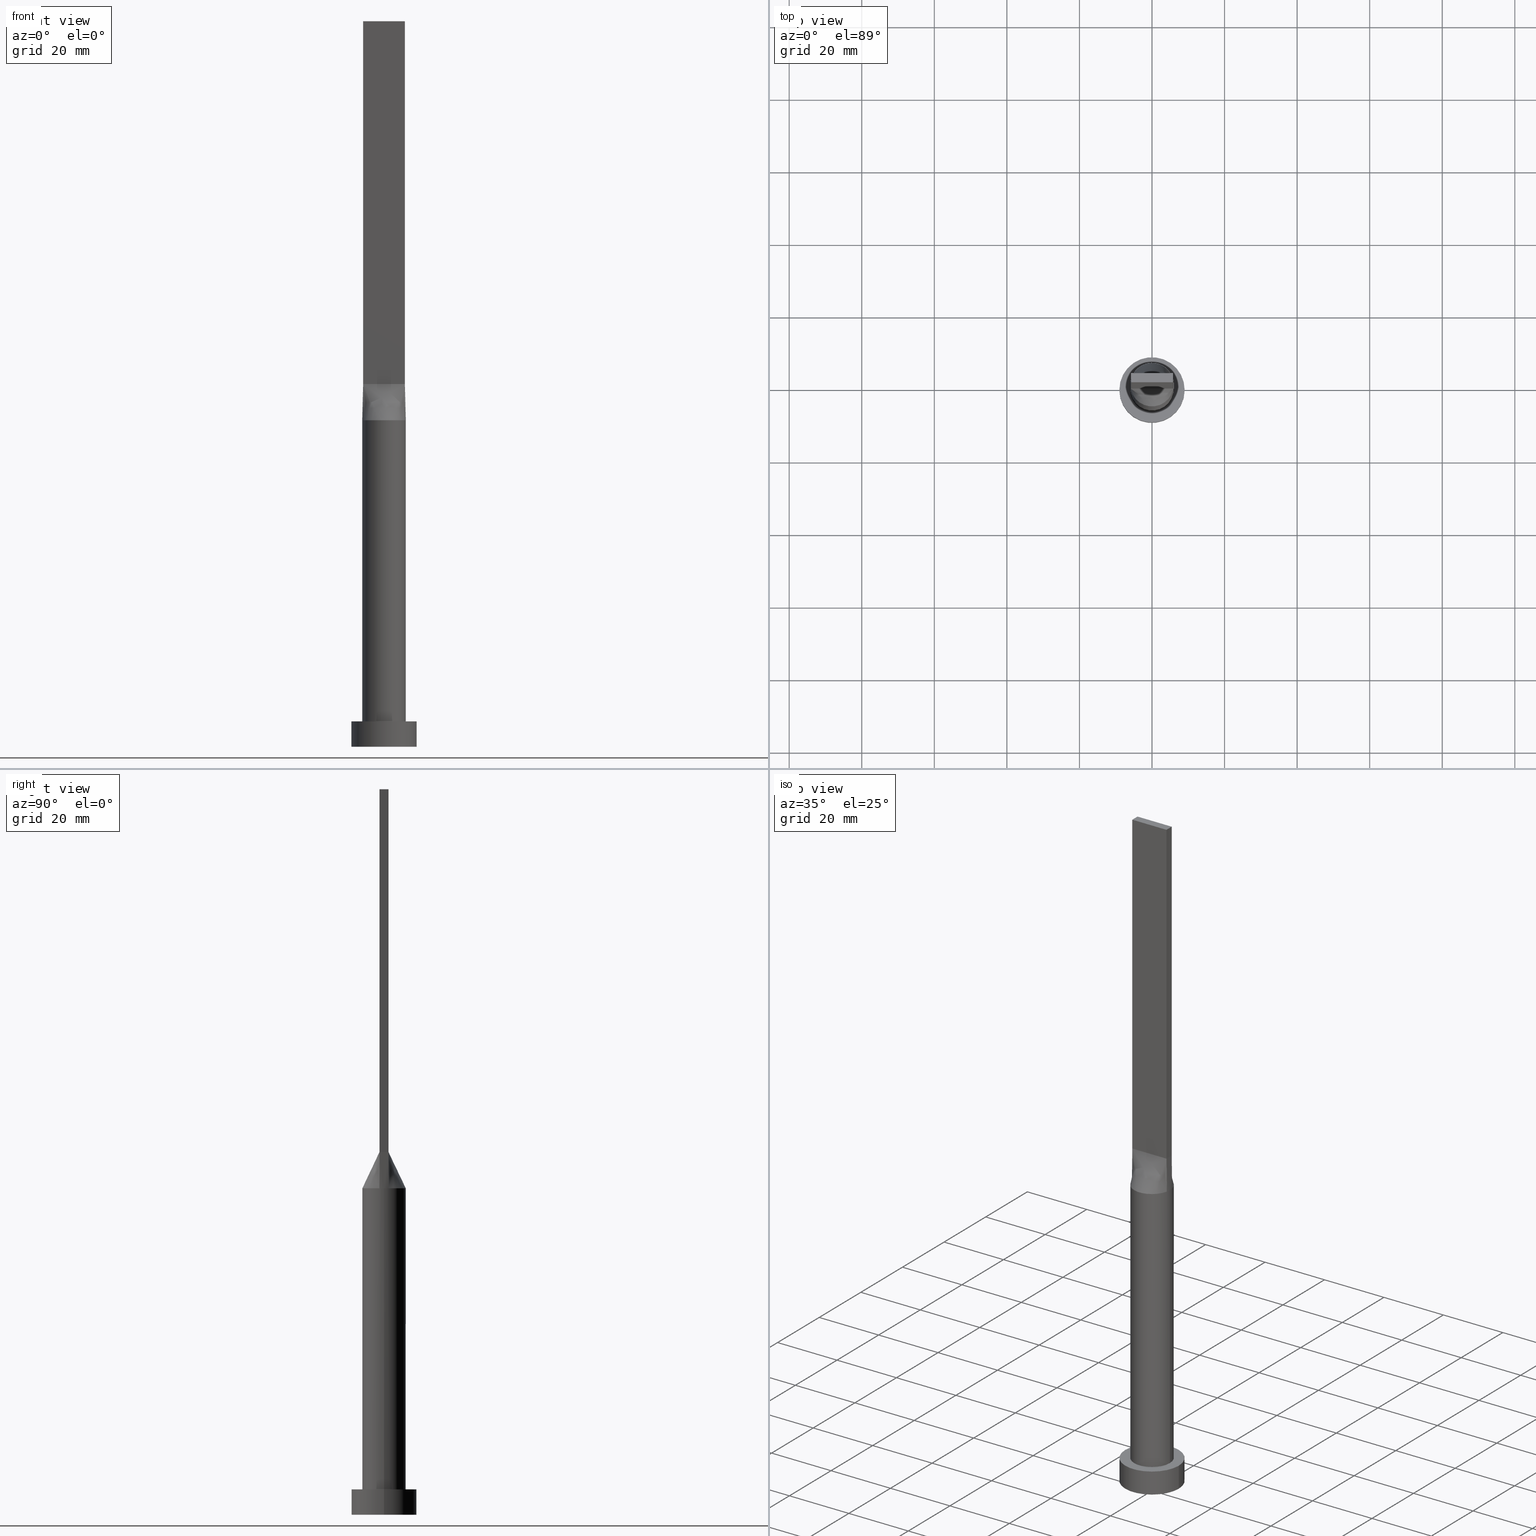
[diagram: canonical four-view strip — front | top / right | iso, engineering-drawing reading convention]
A machine part, canonical four-view strip (front | top / right | iso — engineering-drawing reading convention). The complete STEP part file that produces these views, byte-faithful:
ISO-10303-21;
HEADER;
FILE_DESCRIPTION (( 'STEP AP203' ),
    '1' );
FILE_NAME ('54c3.STEP',
    '2023-02-13T08:33:43',
    ( '' ),
    ( '' ),
    'SwSTEP 2.0',
    'SolidWorks 2019',
    '' );
FILE_SCHEMA (( 'CONFIG_CONTROL_DESIGN' ));
ENDSEC;

DATA;
#1 = EDGE_LOOP ( 'NONE', ( #168, #536, #238, #15 ) ) ;
#2 = CARTESIAN_POINT ( 'NONE',  ( -0.8058840496048931268, 5.959001506938069070, 90.00000000000001421 ) ) ;
#3 = DIRECTION ( 'NONE',  ( 1.000000000000000000, 0.000000000000000000, 0.000000000000000000 ) ) ;
#4 = ORIENTED_EDGE ( 'NONE', *, *, #496, .T. ) ;
#5 = EDGE_CURVE ( 'NONE', #99, #77, #498, .T. ) ;
#6 = CARTESIAN_POINT ( 'NONE',  ( -5.759267569818392829, 1.752014689090956256, 90.00000000000002842 ) ) ;
#7 = DIRECTION ( 'NONE',  ( 1.000000000000000000, 0.000000000000000000, 0.000000000000000000 ) ) ;
#8 = APPROVAL_ROLE ( '' ) ;
#9 = CARTESIAN_POINT ( 'NONE',  ( 5.863058183536806744, -1.274577865986263436, 90.00000000000001421 ) ) ;
#10 = DIRECTION ( 'NONE',  ( 1.000000000000000000, 0.000000000000000000, 0.000000000000000000 ) ) ;
#11 = DIRECTION ( 'NONE',  ( 1.000000000000000000, 0.000000000000000000, 0.000000000000000000 ) ) ;
#12 = CIRCLE ( 'NONE', #380, 6.000000000000000888 ) ;
#13 = DIRECTION ( 'NONE',  ( -0.000000000000000000, -0.000000000000000000, -1.000000000000000000 ) ) ;
#15 = ORIENTED_EDGE ( 'NONE', *, *, #70, .T. ) ;
#14 = APPROVAL_DATE_TIME ( #430, #350 ) ;
#16 = APPROVAL_STATUS ( 'not_yet_approved' ) ;
#17 = CARTESIAN_POINT ( 'NONE',  ( 2.395833333333337478, -1.249999999999999778, 100.0000000000000142 ) ) ;
#18 = DIRECTION ( 'NONE',  ( 0.000000000000000000, -1.000000000000000000, 0.000000000000000000 ) ) ;
#19 = B_SPLINE_SURFACE_WITH_KNOTS ( 'NONE', 3, 1, ( 
 ( #9, #198 ),
 ( #574, #526 ),
 ( #109, #294 ),
 ( #433, #163 ),
 ( #477, #116 ),
 ( #436, #212 ) ),
 .UNSPECIFIED., .F., .F., .F.,
 ( 4, 2, 4 ),
 ( 2, 2 ),
 ( 0.000000000000000000, 0.5000000000000000000, 1.000000000000000000 ),
 ( 0.000000000000000000, 1.000000000000000000 ),
 .UNSPECIFIED. ) ;
#20 = PERSON_AND_ORGANIZATION ( #488, #538 ) ;
#21 = CYLINDRICAL_SURFACE ( 'NONE', #396, 9.000000000000000000 ) ;
#22 = EDGE_CURVE ( 'NONE', #470, #445, #274, .T. ) ;
#23 = VERTEX_POINT ( 'NONE', #549 ) ;
#24 = PERSON_AND_ORGANIZATION_ROLE ( 'creator' ) ;
#25 = AXIS2_PLACEMENT_3D ( 'NONE', #36, #312, #3 ) ;
#26 = CARTESIAN_POINT ( 'NONE',  ( 3.833333333333329929, 1.250000000000000222, 100.0000000000000000 ) ) ;
#27 = ADVANCED_FACE ( 'NONE', ( #560 ), #100, .T. ) ;
#28 = ORIENTED_EDGE ( 'NONE', *, *, #358, .T. ) ;
#29 = CARTESIAN_POINT ( 'NONE',  ( 4.659826596530313836, 3.842755878357678068, 90.00000000000002842 ) ) ;
#30 = ORIENTED_EDGE ( 'NONE', *, *, #247, .F. ) ;
#31 = B_SPLINE_CURVE_WITH_KNOTS ( 'NONE', 3,
 ( #96, #152, #329, #276, #462, #148, #106, #236, #226, #410, #420, #565, #2, #324, #359, #187, #190, #57, #367, #372, #6, #512 ),
 .UNSPECIFIED., .F., .F.,
 ( 4, 2, 2, 2, 2, 2, 2, 2, 2, 2, 4 ),
 ( 0.000000000000000000, 0.1249999999999999722, 0.2499999999999999445, 0.3749999999999999445, 0.4374999999999999445, 0.4999999999999998890, 0.5624999999999998890, 0.6249999999999998890, 0.7499999999999997780, 0.8749999999999998890, 1.000000000000000000 ),
 .UNSPECIFIED. ) ;
#32 = CARTESIAN_POINT ( 'NONE',  ( 3.354166666666662966, 1.250000000000000222, 100.0000000000000000 ) ) ;
#33 = EDGE_LOOP ( 'NONE', ( #30, #234, #313, #355, #37, #409 ) ) ;
#34 = LOCAL_TIME ( 9, 33, 43.00000000000000000, #577 ) ;
#35 = FACE_OUTER_BOUND ( 'NONE', #466, .T. ) ;
#36 = CARTESIAN_POINT ( 'NONE',  ( 0.000000000000000000, 0.000000000000000000, 90.00000000000001421 ) ) ;
#37 = ORIENTED_EDGE ( 'NONE', *, *, #388, .T. ) ;
#38 = CARTESIAN_POINT ( 'NONE',  ( -5.750000000000000000, -1.249999999999999112, 200.0000000000000000 ) ) ;
#39 = DIRECTION ( 'NONE',  ( 1.000000000000000000, -5.656706986880892860E-17, 0.000000000000000000 ) ) ;
#40 = CARTESIAN_POINT ( 'NONE',  ( -5.806529091768402928, 1.262288932993132606, 95.00000000000000000 ) ) ;
#41 = DIRECTION ( 'NONE',  ( 1.000000000000000000, 0.000000000000000000, 0.000000000000000000 ) ) ;
#42 = LINE ( 'NONE', #139, #202 ) ;
#43 = CARTESIAN_POINT ( 'NONE',  ( -1.916666666666660523, -1.249999999999999334, 100.0000000000000000 ) ) ;
#44 = ADVANCED_FACE ( 'NONE', ( #501, #90 ), #230, .T. ) ;
#45 = ORIENTED_EDGE ( 'NONE', *, *, #95, .F. ) ;
#46 = CARTESIAN_POINT ( 'NONE',  ( -5.953310891118034576, 0.8594154111126165452, 90.00000000000001421 ) ) ;
#47 = DIRECTION ( 'NONE',  ( -0.000000000000000000, -0.000000000000000000, -1.000000000000000000 ) ) ;
#48 = CARTESIAN_POINT ( 'NONE',  ( -3.833333333333330817, -1.249999999999999112, 100.0000000000000142 ) ) ;
#49 = EDGE_CURVE ( 'NONE', #442, #207, #463, .T. ) ;
#50 = CARTESIAN_POINT ( 'NONE',  ( -1.966519853258818173, 5.681792876789067748, 90.00000000000001421 ) ) ;
#51 = EDGE_LOOP ( 'NONE', ( #422, #289, #548, #270 ) ) ;
#52 = CARTESIAN_POINT ( 'NONE',  ( -5.750000000000000000, 0.8333333333333350357, 100.0000000000000000 ) ) ;
#53 = CARTESIAN_POINT ( 'NONE',  ( 0.000000000000000000, 0.000000000000000000, 90.00000000000001421 ) ) ;
#54 = DIRECTION ( 'NONE',  ( 0.000000000000000000, 0.000000000000000000, 1.000000000000000000 ) ) ;
#55 = CARTESIAN_POINT ( 'NONE',  ( -3.037647739454304663, 5.231880992812857123, 90.00000000000007105 ) ) ;
#56 = ORIENTED_EDGE ( 'NONE', *, *, #399, .F. ) ;
#57 = CARTESIAN_POINT ( 'NONE',  ( -4.659826596530312948, 3.842755878357679844, 90.00000000000001421 ) ) ;
#58 = DIRECTION ( 'NONE',  ( 0.000000000000000000, -0.000000000000000000, -1.000000000000000000 ) ) ;
#59 = CARTESIAN_POINT ( 'NONE',  ( -5.038190104264874236, 3.311355329404293446, 90.00000000000001421 ) ) ;
#60 = LINE ( 'NONE', #257, #541 ) ;
#61 = ORIENTED_EDGE ( 'NONE', *, *, #461, .T. ) ;
#62 = CALENDAR_DATE ( 2023, 13, 2 ) ;
#63 = CARTESIAN_POINT ( 'NONE',  ( -5.750000000000000000, 1.250000000000000222, 100.0000000000000000 ) ) ;
#64 = VECTOR ( 'NONE', #387, 1000.000000000000000 ) ;
#65 = CARTESIAN_POINT ( 'NONE',  ( 0.9583333333333283743, 1.250000000000000222, 100.0000000000000000 ) ) ;
#66 = DATE_TIME_ROLE ( 'classification_date' ) ;
#67 = MECHANICAL_CONTEXT ( 'NONE', #586, 'mechanical' ) ;
#68 = CARTESIAN_POINT ( 'NONE',  ( 3.833333333333336146, -1.249999999999999778, 100.0000000000000284 ) ) ;
#69 = DIRECTION ( 'NONE',  ( 1.000000000000000000, 0.000000000000000000, -0.000000000000000000 ) ) ;
#70 = EDGE_CURVE ( 'NONE', #207, #23, #493, .T. ) ;
#71 = APPLICATION_CONTEXT ( 'configuration controlled 3d designs of mechanical parts and assemblies' ) ;
#72 = EDGE_CURVE ( 'NONE', #229, #268, #593, .T. ) ;
#73 = EDGE_CURVE ( 'NONE', #559, #229, #80, .T. ) ;
#74 = CLOSED_SHELL ( 'NONE', ( #491, #447, #316, #44, #201, #174, #269, #83, #27, #82, #416, #564, #241, #553, #521 ) ) ;
#75 = AXIS2_PLACEMENT_3D ( 'NONE', #375, #94, #460 ) ;
#76 = EDGE_CURVE ( 'NONE', #79, #309, #227, .T. ) ;
#77 = VERTEX_POINT ( 'NONE', #451 ) ;
#78 = LINE ( 'NONE', #97, #482 ) ;
#79 = VERTEX_POINT ( 'NONE', #92 ) ;
#80 = LINE ( 'NONE', #272, #125 ) ;
#81 = CARTESIAN_POINT ( 'NONE',  ( 3.037647739454303331, -5.231880992812857123, 90.00000000000007105 ) ) ;
#82 = ADVANCED_FACE ( 'NONE', ( #35 ), #381, .T. ) ;
#83 = ADVANCED_FACE ( 'NONE', ( #333 ), #19, .T. ) ;
#84 = EDGE_LOOP ( 'NONE', ( #588, #573, #523, #386, #252 ) ) ;
#85 = AXIS2_PLACEMENT_3D ( 'NONE', #525, #297, #520 ) ;
#86 = LOCAL_TIME ( 9, 33, 43.00000000000000000, #394 ) ;
#87 = DIRECTION ( 'NONE',  ( -1.000000000000000000, 0.000000000000000000, 0.000000000000000000 ) ) ;
#88 = CARTESIAN_POINT ( 'NONE',  ( 5.759267569818392829, 1.752014689090955590, 90.00000000000002842 ) ) ;
#89 = DIRECTION ( 'NONE',  ( 0.000000000000000000, 0.000000000000000000, 1.000000000000000000 ) ) ;
#90 = FACE_OUTER_BOUND ( 'NONE', #186, .T. ) ;
#91 = CARTESIAN_POINT ( 'NONE',  ( 9.000000000000000000, 1.102182119232617714E-15, 0.000000000000000000 ) ) ;
#92 = CARTESIAN_POINT ( 'NONE',  ( 5.863058183536806744, 1.274577865986262326, 90.00000000000001421 ) ) ;
#93 = CARTESIAN_POINT ( 'NONE',  ( -4.659826596530313836, -3.842755878357677179, 90.00000000000002842 ) ) ;
#94 = DIRECTION ( 'NONE',  ( 0.000000000000000000, 0.000000000000000000, 1.000000000000000000 ) ) ;
#95 = EDGE_CURVE ( 'NONE', #218, #545, #12, .T. ) ;
#96 = CARTESIAN_POINT ( 'NONE',  ( 5.863058183536806744, 1.274577865986262326, 90.00000000000001421 ) ) ;
#97 = CARTESIAN_POINT ( 'NONE',  ( -9.000000000000000000, 0.000000000000000000, 7.000000000000000000 ) ) ;
#98 = CARTESIAN_POINT ( 'NONE',  ( -0.2395833333333383663, 1.250000000000000222, 100.0000000000000000 ) ) ;
#99 = VERTEX_POINT ( 'NONE', #310 ) ;
#100 = B_SPLINE_SURFACE_WITH_KNOTS ( 'NONE', 3, 1, ( 
 ( #511, #138 ),
 ( #46, #52 ),
 ( #518, #419 ),
 ( #371, #195 ),
 ( #240, #199 ),
 ( #147, #319 ) ),
 .UNSPECIFIED., .F., .F., .F.,
 ( 4, 2, 4 ),
 ( 2, 2 ),
 ( 0.000000000000000000, 0.5000000000000000000, 1.000000000000000000 ),
 ( 0.000000000000000000, 1.000000000000000000 ),
 .UNSPECIFIED. ) ;
#101 = FACE_OUTER_BOUND ( 'NONE', #51, .T. ) ;
#102 = LINE ( 'NONE', #40, #347 ) ;
#103 = VERTEX_POINT ( 'NONE', #554 ) ;
#104 = CARTESIAN_POINT ( 'NONE',  ( -5.750000000000000000, 1.250000000000000222, 100.0000000000000000 ) ) ;
#105 = ORIENTED_EDGE ( 'NONE', *, *, #443, .T. ) ;
#106 = CARTESIAN_POINT ( 'NONE',  ( 3.037647739454305995, 5.231880992812856235, 90.00000000000002842 ) ) ;
#107 = CARTESIAN_POINT ( 'NONE',  ( 5.750000000000000000, 1.250000000000000222, 200.0000000000000000 ) ) ;
#108 = ORIENTED_EDGE ( 'NONE', *, *, #200, .T. ) ;
#109 = CARTESIAN_POINT ( 'NONE',  ( 6.000000000000000888, -0.4297636735037126954, 90.00000000000000000 ) ) ;
#110 = PRODUCT ( '54c3', '54c3', '', ( #67 ) ) ;
#111 = APPROVAL_STATUS ( 'not_yet_approved' ) ;
#112 = CARTESIAN_POINT ( 'NONE',  ( 4.659826596530312948, -3.842755878357678512, 90.00000000000001421 ) ) ;
#113 = CARTESIAN_POINT ( 'NONE',  ( 9.000000000000000000, 1.102182119232617714E-15, 7.000000000000000000 ) ) ;
#115 = ORIENTED_EDGE ( 'NONE', *, *, #72, .F. ) ;
#114 = SHAPE_DEFINITION_REPRESENTATION ( #193, #349 ) ;
#116 = CARTESIAN_POINT ( 'NONE',  ( 5.750000000000000000, 0.8333333333333325932, 100.0000000000000000 ) ) ;
#117 = APPLICATION_PROTOCOL_DEFINITION ( 'international standard', 'config_control_design', 1994, #71 ) ;
#118 = CARTESIAN_POINT ( 'NONE',  ( 4.791666666666667851, -1.249999999999999778, 100.0000000000000000 ) ) ;
#119 = AXIS2_PLACEMENT_3D ( 'NONE', #286, #467, #291 ) ;
#120 = CALENDAR_DATE ( 2023, 13, 2 ) ;
#121 = DATE_TIME_ROLE ( 'creation_date' ) ;
#122 = EDGE_CURVE ( 'NONE', #77, #470, #205, .T. ) ;
#123 = VECTOR ( 'NONE', #314, 1000.000000000000114 ) ;
#124 = DIRECTION ( 'NONE',  ( -0.000000000000000000, -0.000000000000000000, -1.000000000000000000 ) ) ;
#125 = VECTOR ( 'NONE', #39, 1000.000000000000000 ) ;
#126 = CARTESIAN_POINT ( 'NONE',  ( 5.586898165904734093, 2.266054396544147309, 90.00000000000002842 ) ) ;
#127 = DIRECTION ( 'NONE',  ( 1.000000000000000000, -9.769962616701377556E-15, 0.000000000000000000 ) ) ;
#128 = ORIENTED_EDGE ( 'NONE', *, *, #476, .F. ) ;
#129 = DIRECTION ( 'NONE',  ( 0.000000000000000000, 0.000000000000000000, 1.000000000000000000 ) ) ;
#130 = EDGE_CURVE ( 'NONE', #492, #103, #60, .T. ) ;
#131 = CARTESIAN_POINT ( 'NONE',  ( 1.197916666666672292, -1.249999999999999778, 100.0000000000000142 ) ) ;
#132 = ORIENTED_EDGE ( 'NONE', *, *, #358, .F. ) ;
#133 = DIRECTION ( 'NONE',  ( -0.000000000000000000, -0.000000000000000000, -1.000000000000000000 ) ) ;
#134 = CARTESIAN_POINT ( 'NONE',  ( 5.750000000000000000, 1.250000000000000222, 100.0000000000000000 ) ) ;
#135 = CARTESIAN_POINT ( 'NONE',  ( -4.791666666666666075, -1.249999999999999112, 100.0000000000000142 ) ) ;
#136 = ORIENTED_EDGE ( 'NONE', *, *, #122, .F. ) ;
#137 = CARTESIAN_POINT ( 'NONE',  ( 0.000000000000000000, 0.000000000000000000, 7.000000000000000000 ) ) ;
#138 = CARTESIAN_POINT ( 'NONE',  ( -5.750000000000000000, 1.250000000000000222, 100.0000000000000000 ) ) ;
#139 = CARTESIAN_POINT ( 'NONE',  ( -5.750000000000000000, -1.249999999999999112, 100.0000000000000000 ) ) ;
#140 = CARTESIAN_POINT ( 'NONE',  ( 5.750000000000000000, -1.249999999999999778, 200.0000000000000000 ) ) ;
#141 = CARTESIAN_POINT ( 'NONE',  ( -5.750000000000000000, -1.249999999999999112, 200.0000000000000000 ) ) ;
#142 = VERTEX_POINT ( 'NONE', #158 ) ;
#143 = DIRECTION ( 'NONE',  ( 0.000000000000000000, 1.000000000000000000, 0.000000000000000000 ) ) ;
#144 = DIRECTION ( 'NONE',  ( 0.01130506171853803803, -0.002457622112725964866, 0.9999330755971076456 ) ) ;
#145 = CARTESIAN_POINT ( 'NONE',  ( -0.4029827085191223790, 5.999999999999998224, 90.00000000000002842 ) ) ;
#146 = ORIENTED_EDGE ( 'NONE', *, *, #284, .T. ) ;
#147 = CARTESIAN_POINT ( 'NONE',  ( -5.863058183536806744, -1.274577865986261660, 90.00000000000001421 ) ) ;
#148 = CARTESIAN_POINT ( 'NONE',  ( 3.660567483996337579, 4.804269179125218336, 90.00000000000002842 ) ) ;
#149 = CARTESIAN_POINT ( 'NONE',  ( 5.750000000000000000, 1.250000000000000222, 100.0000000000000000 ) ) ;
#150 = EDGE_LOOP ( 'NONE', ( #591, #400, #448, #357, #457, #569 ) ) ;
#151 = VECTOR ( 'NONE', #339, 1000.000000000000000 ) ;
#152 = CARTESIAN_POINT ( 'NONE',  ( 5.759267569818392829, 1.752014689090955590, 90.00000000000002842 ) ) ;
#153 = AXIS2_PLACEMENT_3D ( 'NONE', #413, #191, #507 ) ;
#154 = PLANE ( 'NONE',  #220 ) ;
#155 = PERSON_AND_ORGANIZATION_ROLE ( 'classification_officer' ) ;
#156 = CARTESIAN_POINT ( 'NONE',  ( -6.000000000000000888, -3.688698462745542764E-16, 90.00000000000000000 ) ) ;
#157 = CARTESIAN_POINT ( 'NONE',  ( 3.660567483996337579, 4.804269179125218336, 90.00000000000002842 ) ) ;
#158 = CARTESIAN_POINT ( 'NONE',  ( 5.863058287509796074, -1.274577880478293901, 90.00000000000001421 ) ) ;
#159 = PERSON_AND_ORGANIZATION ( #488, #538 ) ;
#160 = DIRECTION ( 'NONE',  ( -0.000000000000000000, 0.000000000000000000, -1.000000000000000000 ) ) ;
#161 = LINE ( 'NONE', #429, #173 ) ;
#162 = COORDINATED_UNIVERSAL_TIME_OFFSET ( 1, 0, .AHEAD. ) ;
#163 = CARTESIAN_POINT ( 'NONE',  ( 5.750000000000000000, 0.4166666666666655749, 100.0000000000000000 ) ) ;
#164 = FACE_OUTER_BOUND ( 'NONE', #179, .T. ) ;
#165 = VECTOR ( 'NONE', #13, 1000.000000000000000 ) ;
#166 = CALENDAR_DATE ( 2023, 13, 2 ) ;
#167 = CALENDAR_DATE ( 2023, 13, 2 ) ;
#168 = ORIENTED_EDGE ( 'NONE', *, *, #171, .T. ) ;
#169 = AXIS2_PLACEMENT_3D ( 'NONE', #53, #177, #472 ) ;
#170 = ORIENTED_EDGE ( 'NONE', *, *, #211, .T. ) ;
#171 = EDGE_CURVE ( 'NONE', #23, #492, #435, .T. ) ;
#172 = ORIENTED_EDGE ( 'NONE', *, *, #72, .T. ) ;
#173 = VECTOR ( 'NONE', #572, 1000.000000000000000 ) ;
#174 = ADVANCED_FACE ( 'NONE', ( #576 ), #398, .T. ) ;
#175 = CARTESIAN_POINT ( 'NONE',  ( 0.9583333333333390325, -1.249999999999999556, 100.0000000000000000 ) ) ;
#176 = ORIENTED_EDGE ( 'NONE', *, *, #485, .F. ) ;
#177 = DIRECTION ( 'NONE',  ( 0.000000000000000000, 0.000000000000000000, 1.000000000000000000 ) ) ;
#178 = DIRECTION ( 'NONE',  ( -1.000000000000000000, 5.656706986880892860E-17, 0.000000000000000000 ) ) ;
#179 = EDGE_LOOP ( 'NONE', ( #136, #369, #108, #28 ) ) ;
#180 = PLANE ( 'NONE',  #341 ) ;
#181 = DIRECTION ( 'NONE',  ( -0.000000000000000000, -0.000000000000000000, -1.000000000000000000 ) ) ;
#182 = DIRECTION ( 'NONE',  ( -0.000000000000000000, -0.000000000000000000, -1.000000000000000000 ) ) ;
#183 = EDGE_CURVE ( 'NONE', #142, #495, #401, .T. ) ;
#184 = DIRECTION ( 'NONE',  ( 1.000000000000000000, 0.000000000000000000, 0.000000000000000000 ) ) ;
#185 = VECTOR ( 'NONE', #579, 1000.000000000000000 ) ;
#186 = EDGE_LOOP ( 'NONE', ( #427, #146 ) ) ;
#187 = CARTESIAN_POINT ( 'NONE',  ( -3.037647739454304663, 5.231880992812857123, 90.00000000000007105 ) ) ;
#188 = CARTESIAN_POINT ( 'NONE',  ( 5.863058183536806744, 1.274577865986262104, 90.00000000000001421 ) ) ;
#189 = CARTESIAN_POINT ( 'NONE',  ( -0.2395833333333274584, -1.249999999999999556, 100.0000000000000142 ) ) ;
#190 = CARTESIAN_POINT ( 'NONE',  ( -3.660567483996338023, 4.804269179125219225, 90.00000000000005684 ) ) ;
#191 = DIRECTION ( 'NONE',  ( 0.000000000000000000, 0.000000000000000000, 1.000000000000000000 ) ) ;
#192 = CARTESIAN_POINT ( 'NONE',  ( 5.750000000000000000, -1.249999999999999778, 200.0000000000000000 ) ) ;
#193 = PRODUCT_DEFINITION_SHAPE ( 'NONE', 'NONE',  #544 ) ;
#194 = ORIENTED_EDGE ( 'NONE', *, *, #49, .F. ) ;
#195 = CARTESIAN_POINT ( 'NONE',  ( -5.750000000000000000, -0.4166666666666639651, 100.0000000000000000 ) ) ;
#196 = DIRECTION ( 'NONE',  ( 1.000000000000000000, -5.656706986880892860E-17, 0.000000000000000000 ) ) ;
#197 = CARTESIAN_POINT ( 'NONE',  ( 5.038190104264874236, -3.311355329404293890, 90.00000000000002842 ) ) ;
#198 = CARTESIAN_POINT ( 'NONE',  ( 5.750000000000000000, -1.249999999999999778, 100.0000000000000000 ) ) ;
#199 = CARTESIAN_POINT ( 'NONE',  ( -5.750000000000000000, -0.8333333333333313719, 100.0000000000000000 ) ) ;
#200 = EDGE_CURVE ( 'NONE', #99, #445, #78, .T. ) ;
#201 = ADVANCED_FACE ( 'NONE', ( #224 ), #408, .F. ) ;
#202 = VECTOR ( 'NONE', #196, 1000.000000000000000 ) ;
#203 = DIRECTION ( 'NONE',  ( 0.000000000000000000, 0.000000000000000000, 1.000000000000000000 ) ) ;
#204 = CARTESIAN_POINT ( 'NONE',  ( 5.750000000000000000, 1.250000000000000222, 200.0000000000000000 ) ) ;
#205 = LINE ( 'NONE', #113, #165 ) ;
#207 = VERTEX_POINT ( 'NONE', #594 ) ;
#206 = PERSON_AND_ORGANIZATION ( #488, #538 ) ;
#208 = PERSON_AND_ORGANIZATION ( #488, #538 ) ;
#209 = CARTESIAN_POINT ( 'NONE',  ( 5.586898165904734093, -2.266054396544146865, 90.00000000000004263 ) ) ;
#210 = CARTESIAN_POINT ( 'NONE',  ( 0.4029827085191226566, 5.999999999999999112, 90.00000000000002842 ) ) ;
#211 = EDGE_CURVE ( 'NONE', #337, #23, #102, .T. ) ;
#212 = CARTESIAN_POINT ( 'NONE',  ( 5.750000000000000000, 1.250000000000000222, 100.0000000000000000 ) ) ;
#213 = APPROVAL_DATE_TIME ( #390, #366 ) ;
#214 = DIRECTION ( 'NONE',  ( -1.000000000000000000, 0.000000000000000000, 0.000000000000000000 ) ) ;
#215 = CIRCLE ( 'NONE', #365, 9.000000000000000000 ) ;
#216 = EDGE_LOOP ( 'NONE', ( #221, #453, #176, #172 ) ) ;
#217 = EDGE_CURVE ( 'NONE', #337, #374, #327, .T. ) ;
#218 = VERTEX_POINT ( 'NONE', #321 ) ;
#219 = CARTESIAN_POINT ( 'NONE',  ( -0.4791666666666606345, -1.249999999999999334, 100.0000000000000000 ) ) ;
#220 = AXIS2_PLACEMENT_3D ( 'NONE', #107, #292, #58 ) ;
#221 = ORIENTED_EDGE ( 'NONE', *, *, #265, .T. ) ;
#222 = CC_DESIGN_APPROVAL ( #350, ( #354 ) ) ;
#223 = APPROVAL ( #529, 'NEUR�EN�' ) ;
#224 = FACE_OUTER_BOUND ( 'NONE', #298, .T. ) ;
#225 = ORIENTED_EDGE ( 'NONE', *, *, #406, .T. ) ;
#226 = CARTESIAN_POINT ( 'NONE',  ( 1.587717880441007479, 5.799853445840305710, 90.00000000000000000 ) ) ;
#227 = LINE ( 'NONE', #360, #393 ) ;
#228 = CARTESIAN_POINT ( 'NONE',  ( -5.750000000000000000, -1.249999999999999112, 200.0000000000000000 ) ) ;
#229 = VERTEX_POINT ( 'NONE', #192 ) ;
#230 = PLANE ( 'NONE',  #153 ) ;
#231 = CYLINDRICAL_SURFACE ( 'NONE', #450, 9.000000000000000000 ) ;
#232 = CARTESIAN_POINT ( 'NONE',  ( -5.750000000000000000, 1.250000000000000222, 200.0000000000000000 ) ) ;
#233 = CARTESIAN_POINT ( 'NONE',  ( -1.197916666666660079, -1.249999999999999334, 100.0000000000000000 ) ) ;
#234 = ORIENTED_EDGE ( 'NONE', *, *, #183, .F. ) ;
#235 = AXIS2_PLACEMENT_3D ( 'NONE', #228, #504, #178 ) ;
#236 = CARTESIAN_POINT ( 'NONE',  ( 1.966519853258819062, 5.681792876789066860, 90.00000000000002842 ) ) ;
#237 = CARTESIAN_POINT ( 'NONE',  ( -2.395833333333328152, -1.249999999999999112, 100.0000000000000000 ) ) ;
#238 = ORIENTED_EDGE ( 'NONE', *, *, #370, .F. ) ;
#239 = CC_DESIGN_DATE_AND_TIME_ASSIGNMENT ( #481, #66, ( #397 ) ) ;
#240 = CARTESIAN_POINT ( 'NONE',  ( -5.953310891118033688, -0.8594154111126154350, 90.00000000000001421 ) ) ;
#241 = ADVANCED_FACE ( 'NONE', ( #590 ), #562, .F. ) ;
#242 = CARTESIAN_POINT ( 'NONE',  ( 0.000000000000000000, 0.000000000000000000, 7.000000000000000000 ) ) ;
#243 = CARTESIAN_POINT ( 'NONE',  ( 3.354166666666669183, -1.249999999999999778, 100.0000000000000284 ) ) ;
#244 = CARTESIAN_POINT ( 'NONE',  ( -1.916666666666669849, 1.250000000000000222, 100.0000000000000000 ) ) ;
#246 = ORIENTED_EDGE ( 'NONE', *, *, #76, .T. ) ;
#245 = APPROVAL_DATE_TIME ( #426, #223 ) ;
#247 = EDGE_CURVE ( 'NONE', #495, #218, #411, .T. ) ;
#248 = PERSON_AND_ORGANIZATION ( #488, #538 ) ;
#249 = CARTESIAN_POINT ( 'NONE',  ( 5.270833333333333925, -1.249999999999999778, 100.0000000000000000 ) ) ;
#250 = CARTESIAN_POINT ( 'NONE',  ( -1.197916666666670515, 1.250000000000000222, 100.0000000000000000 ) ) ;
#252 = ORIENTED_EDGE ( 'NONE', *, *, #211, .F. ) ;
#251 = PERSON_AND_ORGANIZATION ( #488, #538 ) ;
#253 = AXIS2_PLACEMENT_3D ( 'NONE', #571, #505, #41 ) ;
#254 = DATE_AND_TIME ( #62, #589 ) ;
#255 = CC_DESIGN_SECURITY_CLASSIFICATION ( #397, ( #354 ) ) ;
#256 = CARTESIAN_POINT ( 'NONE',  ( 0.000000000000000000, 0.000000000000000000, 0.000000000000000000 ) ) ;
#257 = CARTESIAN_POINT ( 'NONE',  ( -5.806529091768402928, -1.262288932993130386, 95.00000000000000000 ) ) ;
#258 = EDGE_CURVE ( 'NONE', #559, #492, #552, .T. ) ;
#259 =( NAMED_UNIT ( * ) SI_UNIT ( $, .STERADIAN. ) SOLID_ANGLE_UNIT ( ) );
#260 = LINE ( 'NONE', #63, #185 ) ;
#261 = UNCERTAINTY_MEASURE_WITH_UNIT (LENGTH_MEASURE( 1.000000000000000082E-05 ), #578, 'distance_accuracy_value', 'NONE');
#262 = DIRECTION ( 'NONE',  ( 1.000000000000000000, 0.000000000000000000, 0.000000000000000000 ) ) ;
#263 = CIRCLE ( 'NONE', #85, 9.000000000000000000 ) ;
#264 = LOCAL_TIME ( 9, 33, 43.00000000000000000, #162 ) ;
#265 = EDGE_CURVE ( 'NONE', #268, #309, #361, .T. ) ;
#266 = CC_DESIGN_PERSON_AND_ORGANIZATION_ASSIGNMENT ( #159, #336, ( #354 ) ) ;
#267 = AXIS2_PLACEMENT_3D ( 'NONE', #376, #47, #458 ) ;
#268 = VERTEX_POINT ( 'NONE', #468 ) ;
#269 = ADVANCED_FACE ( 'NONE', ( #464 ), #439, .T. ) ;
#270 = ORIENTED_EDGE ( 'NONE', *, *, #485, .T. ) ;
#271 = ORIENTED_EDGE ( 'NONE', *, *, #345, .T. ) ;
#272 = CARTESIAN_POINT ( 'NONE',  ( -5.750000000000000000, -1.249999999999999112, 200.0000000000000000 ) ) ;
#273 = CARTESIAN_POINT ( 'NONE',  ( 1.916666666666671626, -1.249999999999999778, 100.0000000000000142 ) ) ;
#274 = CIRCLE ( 'NONE', #75, 9.000000000000000000 ) ;
#275 = EDGE_LOOP ( 'NONE', ( #271, #326, #194, #328 ) ) ;
#276 = CARTESIAN_POINT ( 'NONE',  ( 5.038190104264874236, 3.311355329404293002, 90.00000000000004263 ) ) ;
#277 = CARTESIAN_POINT ( 'NONE',  ( 5.270833333333332149, 1.250000000000000222, 100.0000000000000000 ) ) ;
#278 = DIRECTION ( 'NONE',  ( -0.000000000000000000, 1.000000000000000000, -0.000000000000000000 ) ) ;
#279 = CARTESIAN_POINT ( 'NONE',  ( -5.750000000000000000, 1.250000000000000222, 200.0000000000000000 ) ) ;
#280 = CARTESIAN_POINT ( 'NONE',  ( -3.037647739454305551, -5.231880992812856235, 90.00000000000002842 ) ) ;
#281 = FACE_OUTER_BOUND ( 'NONE', #516, .T. ) ;
#282 = CARTESIAN_POINT ( 'NONE',  ( 6.000000000000000888, 7.347880794884120722E-16, 90.00000000000001421 ) ) ;
#283 = CARTESIAN_POINT ( 'NONE',  ( -1.587717880441007035, 5.799853445840308375, 90.00000000000001421 ) ) ;
#284 = EDGE_CURVE ( 'NONE', #77, #99, #263, .T. ) ;
#285 = ORIENTED_EDGE ( 'NONE', *, *, #73, .F. ) ;
#286 = CARTESIAN_POINT ( 'NONE',  ( 0.000000000000000000, 0.000000000000000000, 200.0000000000000000 ) ) ;
#287 = CARTESIAN_POINT ( 'NONE',  ( -3.660567483996338911, -4.804269179125217448, 90.00000000000002842 ) ) ;
#288 = CARTESIAN_POINT ( 'NONE',  ( 2.395833333333328596, 1.250000000000000222, 100.0000000000000000 ) ) ;
#289 = ORIENTED_EDGE ( 'NONE', *, *, #370, .T. ) ;
#290 = CARTESIAN_POINT ( 'NONE',  ( -5.270833333333333925, 1.250000000000000222, 100.0000000000000000 ) ) ;
#291 = DIRECTION ( 'NONE',  ( 1.000000000000000000, 0.000000000000000000, -0.000000000000000000 ) ) ;
#292 = DIRECTION ( 'NONE',  ( 0.000000000000000000, -1.000000000000000000, 0.000000000000000000 ) ) ;
#293 = CARTESIAN_POINT ( 'NONE',  ( 1.587717880441007479, 5.799853445840305710, 90.00000000000000000 ) ) ;
#294 = CARTESIAN_POINT ( 'NONE',  ( 5.750000000000000000, -0.4166666666666677954, 100.0000000000000000 ) ) ;
#295 = CC_DESIGN_PERSON_AND_ORGANIZATION_ASSIGNMENT ( #580, #155, ( #397 ) ) ;
#296 = COORDINATED_UNIVERSAL_TIME_OFFSET ( 1, 0, .AHEAD. ) ;
#297 = DIRECTION ( 'NONE',  ( 0.000000000000000000, 0.000000000000000000, 1.000000000000000000 ) ) ;
#298 = EDGE_LOOP ( 'NONE', ( #132, #431 ) ) ;
#299 = CARTESIAN_POINT ( 'NONE',  ( -5.586898165904732316, 2.266054396544148197, 90.00000000000002842 ) ) ;
#300 = VECTOR ( 'NONE', #18, 1000.000000000000000 ) ;
#301 = LOCAL_TIME ( 9, 33, 43.00000000000000000, #296 ) ;
#302 = CARTESIAN_POINT ( 'NONE',  ( 0.000000000000000000, 0.000000000000000000, 7.000000000000000000 ) ) ;
#303 = APPROVAL_ROLE ( '' ) ;
#304 = DIRECTION ( 'NONE',  ( 0.000000000000000000, 0.000000000000000000, 1.000000000000000000 ) ) ;
#305 = CIRCLE ( 'NONE', #169, 6.000000000000000888 ) ;
#306 = EDGE_CURVE ( 'NONE', #442, #309, #479, .T. ) ;
#307 = VECTOR ( 'NONE', #143, 1000.000000000000000 ) ;
#308 = APPROVAL_PERSON_ORGANIZATION ( #206, #223, #8 ) ;
#309 = VERTEX_POINT ( 'NONE', #575 ) ;
#310 = CARTESIAN_POINT ( 'NONE',  ( -9.000000000000000000, 0.000000000000000000, 7.000000000000000000 ) ) ;
#311 = CARTESIAN_POINT ( 'NONE',  ( 5.750000000000000000, 1.250000000000000222, 200.0000000000000000 ) ) ;
#312 = DIRECTION ( 'NONE',  ( 0.000000000000000000, 0.000000000000000000, 1.000000000000000000 ) ) ;
#313 = ORIENTED_EDGE ( 'NONE', *, *, #406, .F. ) ;
#314 = DIRECTION ( 'NONE',  ( -0.01130506171853803803, 0.002457622112726073286, 0.9999330755971076456 ) ) ;
#315 = CARTESIAN_POINT ( 'NONE',  ( -5.586898165904734093, -2.266054396544145533, 90.00000000000002842 ) ) ;
#316 = ADVANCED_FACE ( 'NONE', ( #164 ), #21, .T. ) ;
#317 = VECTOR ( 'NONE', #278, 1000.000000000000000 ) ;
#318 = EDGE_LOOP ( 'NONE', ( #353, #105, #246, #446, #379 ) ) ;
#319 = CARTESIAN_POINT ( 'NONE',  ( -5.750000000000000000, -1.249999999999999334, 100.0000000000000000 ) ) ;
#320 = CARTESIAN_POINT ( 'NONE',  ( -5.750000000000000000, -1.249999999999999112, 100.0000000000000000 ) ) ;
#321 = CARTESIAN_POINT ( 'NONE',  ( 6.000000000000000888, 7.347880794884120722E-16, 7.000000000000000000 ) ) ;
#322 = LINE ( 'NONE', #556, #123 ) ;
#323 = CARTESIAN_POINT ( 'NONE',  ( -3.354166666666663410, -1.249999999999999112, 100.0000000000000000 ) ) ;
#324 = CARTESIAN_POINT ( 'NONE',  ( -1.587717880441007035, 5.799853445840308375, 90.00000000000001421 ) ) ;
#325 = CARTESIAN_POINT ( 'NONE',  ( -5.863058183536806744, -1.274577865986261438, 90.00000000000001421 ) ) ;
#326 = ORIENTED_EDGE ( 'NONE', *, *, #70, .F. ) ;
#327 = CIRCLE ( 'NONE', #25, 6.000000000000000888 ) ;
#328 = ORIENTED_EDGE ( 'NONE', *, *, #306, .T. ) ;
#329 = CARTESIAN_POINT ( 'NONE',  ( 5.586898165904734093, 2.266054396544147309, 90.00000000000002842 ) ) ;
#330 = CARTESIAN_POINT ( 'NONE',  ( 3.660567483996338023, -4.804269179125219225, 90.00000000000005684 ) ) ;
#331 = CARTESIAN_POINT ( 'NONE',  ( -0.9583333333333372561, 1.250000000000000222, 100.0000000000000000 ) ) ;
#332 = EDGE_LOOP ( 'NONE', ( #346, #115, #285, #475 ) ) ;
#333 = FACE_OUTER_BOUND ( 'NONE', #318, .T. ) ;
#334 = DIRECTION ( 'NONE',  ( -0.000000000000000000, -0.000000000000000000, -1.000000000000000000 ) ) ;
#335 = CARTESIAN_POINT ( 'NONE',  ( 1.916666666666662078, 1.250000000000000222, 100.0000000000000000 ) ) ;
#337 = VERTEX_POINT ( 'NONE', #391 ) ;
#336 = PERSON_AND_ORGANIZATION_ROLE ( 'creator' ) ;
#338 = APPLICATION_PROTOCOL_DEFINITION ( 'international standard', 'config_control_design', 1994, #586 ) ;
#339 = DIRECTION ( 'NONE',  ( -0.000000000000000000, -0.000000000000000000, -1.000000000000000000 ) ) ;
#340 = PERSON_AND_ORGANIZATION_ROLE ( 'design_supplier' ) ;
#341 = AXIS2_PLACEMENT_3D ( 'NONE', #279, #69, #160 ) ;
#342 = COORDINATED_UNIVERSAL_TIME_OFFSET ( 1, 0, .AHEAD. ) ;
#343 = CARTESIAN_POINT ( 'NONE',  ( 0.000000000000000000, 0.000000000000000000, 90.00000000000001421 ) ) ;
#344 =( NAMED_UNIT ( * ) PLANE_ANGLE_UNIT ( ) SI_UNIT ( $, .RADIAN. ) );
#345 = EDGE_CURVE ( 'NONE', #309, #23, #260, .T. ) ;
#346 = ORIENTED_EDGE ( 'NONE', *, *, #476, .T. ) ;
#347 = VECTOR ( 'NONE', #144, 1000.000000000000114 ) ;
#348 = CC_DESIGN_APPROVAL ( #366, ( #544 ) ) ;
#349 = ADVANCED_BREP_SHAPE_REPRESENTATION ( '54c3', ( #449, #568 ), #487 ) ;
#350 = APPROVAL ( #16, 'NEUR�EN�' ) ;
#351 = CARTESIAN_POINT ( 'NONE',  ( 0.000000000000000000, 0.000000000000000000, 90.00000000000001421 ) ) ;
#352 = CARTESIAN_POINT ( 'NONE',  ( 5.038190104264874236, 3.311355329404293002, 90.00000000000004263 ) ) ;
#353 = ORIENTED_EDGE ( 'NONE', *, *, #183, .T. ) ;
#354 = PRODUCT_DEFINITION_FORMATION_WITH_SPECIFIED_SOURCE ( 'LIBOVOLN�', '', #110, .NOT_KNOWN. ) ;
#355 = ORIENTED_EDGE ( 'NONE', *, *, #582, .F. ) ;
#356 = CARTESIAN_POINT ( 'NONE',  ( -5.270833333333333037, -1.249999999999999112, 100.0000000000000142 ) ) ;
#357 = ORIENTED_EDGE ( 'NONE', *, *, #388, .F. ) ;
#358 = EDGE_CURVE ( 'NONE', #445, #470, #215, .T. ) ;
#359 = CARTESIAN_POINT ( 'NONE',  ( -1.966519853258818173, 5.681792876789067748, 90.00000000000001421 ) ) ;
#360 = CARTESIAN_POINT ( 'NONE',  ( 5.806529091768402928, 1.262288932993131496, 95.00000000000000000 ) ) ;
#361 = LINE ( 'NONE', #149, #317 ) ;
#362 = ORIENTED_EDGE ( 'NONE', *, *, #345, .F. ) ;
#363 = PLANE ( 'NONE',  #599 ) ;
#364 = DIRECTION ( 'NONE',  ( -0.000000000000000000, -0.000000000000000000, -1.000000000000000000 ) ) ;
#365 = AXIS2_PLACEMENT_3D ( 'NONE', #256, #54, #11 ) ;
#366 = APPROVAL ( #111, 'NEUR�EN�' ) ;
#367 = CARTESIAN_POINT ( 'NONE',  ( -5.038190104264874236, 3.311355329404293446, 90.00000000000001421 ) ) ;
#368 = CARTESIAN_POINT ( 'NONE',  ( 0.4029827085191214908, -6.000000000000000888, 90.00000000000002842 ) ) ;
#369 = ORIENTED_EDGE ( 'NONE', *, *, #5, .F. ) ;
#370 = EDGE_CURVE ( 'NONE', #207, #559, #161, .T. ) ;
#371 = CARTESIAN_POINT ( 'NONE',  ( -6.000000000000000888, -0.4297636735037110300, 89.99999999999997158 ) ) ;
#372 = CARTESIAN_POINT ( 'NONE',  ( -5.586898165904732316, 2.266054396544148197, 90.00000000000002842 ) ) ;
#373 = CARTESIAN_POINT ( 'NONE',  ( 0.000000000000000000, 0.000000000000000000, 0.000000000000000000 ) ) ;
#374 = VERTEX_POINT ( 'NONE', #156 ) ;
#375 = CARTESIAN_POINT ( 'NONE',  ( 0.000000000000000000, 0.000000000000000000, 0.000000000000000000 ) ) ;
#376 = CARTESIAN_POINT ( 'NONE',  ( 0.000000000000000000, 0.000000000000000000, 90.00000000000001421 ) ) ;
#377 = CARTESIAN_POINT ( 'NONE',  ( 5.863058183536805856, -1.274577865986266101, 90.00000000000001421 ) ) ;
#378 = CARTESIAN_POINT ( 'NONE',  ( -2.395833333333335702, 1.250000000000000222, 100.0000000000000000 ) ) ;
#379 = ORIENTED_EDGE ( 'NONE', *, *, #461, .F. ) ;
#380 = AXIS2_PLACEMENT_3D ( 'NONE', #137, #129, #184 ) ;
#381 = B_SPLINE_SURFACE_WITH_KNOTS ( 'NONE', 3, 1, ( 
 ( #188, #134 ),
 ( #88, #277 ),
 ( #126, #489 ),
 ( #352, #26 ),
 ( #29, #32 ),
 ( #157, #288 ),
 ( #417, #335 ),
 ( #480, #384 ),
 ( #293, #65 ),
 ( #558, #469 ),
 ( #210, #601 ),
 ( #145, #98 ),
 ( #509, #514 ),
 ( #283, #331 ),
 ( #50, #250 ),
 ( #55, #244 ),
 ( #425, #378 ),
 ( #522, #474 ),
 ( #59, #570 ),
 ( #299, #563 ),
 ( #517, #290 ),
 ( #428, #104 ) ),
 .UNSPECIFIED., .F., .F., .F.,
 ( 4, 2, 2, 2, 2, 2, 2, 2, 2, 2, 4 ),
 ( 2, 2 ),
 ( 0.000000000000000000, 0.1249999999999999722, 0.2499999999999999445, 0.3749999999999999445, 0.4374999999999999445, 0.4999999999999998890, 0.5624999999999998890, 0.6249999999999998890, 0.7499999999999997780, 0.8749999999999998890, 1.000000000000000000 ),
 ( 0.000000000000000000, 1.000000000000000000 ),
 .UNSPECIFIED. ) ;
#382 = CC_DESIGN_APPROVAL ( #223, ( #397 ) ) ;
#383 = CARTESIAN_POINT ( 'NONE',  ( 0.000000000000000000, 0.000000000000000000, 7.000000000000000000 ) ) ;
#384 = CARTESIAN_POINT ( 'NONE',  ( 1.197916666666661856, 1.250000000000000222, 100.0000000000000000 ) ) ;
#385 = DIRECTION ( 'NONE',  ( -0.01130506171853812650, -0.002457622112725682973, -0.9999330755971076456 ) ) ;
#386 = ORIENTED_EDGE ( 'NONE', *, *, #171, .F. ) ;
#387 = DIRECTION ( 'NONE',  ( -0.000000000000000000, -0.000000000000000000, -1.000000000000000000 ) ) ;
#388 = EDGE_CURVE ( 'NONE', #374, #545, #434, .T. ) ;
#389 = CARTESIAN_POINT ( 'NONE',  ( -5.750000000000000000, 1.250000000000000222, 100.0000000000000000 ) ) ;
#390 = DATE_AND_TIME ( #167, #301 ) ;
#391 = CARTESIAN_POINT ( 'NONE',  ( -5.863058287509749888, 1.274577880478287017, 90.00000000000001421 ) ) ;
#392 = SECURITY_CLASSIFICATION_LEVEL ( 'unclassified' ) ;
#393 = VECTOR ( 'NONE', #503, 1000.000000000000114 ) ;
#394 = COORDINATED_UNIVERSAL_TIME_OFFSET ( 1, 0, .AHEAD. ) ;
#395 = CC_DESIGN_DATE_AND_TIME_ASSIGNMENT ( #254, #121, ( #544 ) ) ;
#396 = AXIS2_PLACEMENT_3D ( 'NONE', #383, #334, #214 ) ;
#397 = SECURITY_CLASSIFICATION ( '', '', #392 ) ;
#398 = CYLINDRICAL_SURFACE ( 'NONE', #418, 6.000000000000000888 ) ;
#399 = EDGE_CURVE ( 'NONE', #545, #218, #567, .T. ) ;
#400 = ORIENTED_EDGE ( 'NONE', *, *, #247, .T. ) ;
#401 = CIRCLE ( 'NONE', #515, 6.000000000000000888 ) ;
#402 = CARTESIAN_POINT ( 'NONE',  ( 0.4791666666666724028, -1.249999999999999556, 100.0000000000000142 ) ) ;
#403 = VECTOR ( 'NONE', #181, 1000.000000000000000 ) ;
#404 = APPROVAL_PERSON_ORGANIZATION ( #208, #350, #303 ) ;
#405 = ORIENTED_EDGE ( 'NONE', *, *, #22, .T. ) ;
#406 = EDGE_CURVE ( 'NONE', #103, #142, #486, .T. ) ;
#407 = LINE ( 'NONE', #423, #307 ) ;
#408 = PLANE ( 'NONE',  #441 ) ;
#409 = ORIENTED_EDGE ( 'NONE', *, *, #399, .T. ) ;
#410 = CARTESIAN_POINT ( 'NONE',  ( 0.8058840496048939039, 5.959001506938069070, 90.00000000000002842 ) ) ;
#411 = LINE ( 'NONE', #282, #444 ) ;
#412 = PRODUCT_RELATED_PRODUCT_CATEGORY ( 'detail', '', ( #110 ) ) ;
#413 = CARTESIAN_POINT ( 'NONE',  ( 0.000000000000000000, 0.000000000000000000, 7.000000000000000000 ) ) ;
#414 = CYLINDRICAL_SURFACE ( 'NONE', #267, 6.000000000000000888 ) ;
#415 = CARTESIAN_POINT ( 'NONE',  ( -1.587717880441008589, -5.799853445840304822, 90.00000000000001421 ) ) ;
#416 = ADVANCED_FACE ( 'NONE', ( #566 ), #154, .F. ) ;
#417 = CARTESIAN_POINT ( 'NONE',  ( 3.037647739454305995, 5.231880992812856235, 90.00000000000002842 ) ) ;
#418 = AXIS2_PLACEMENT_3D ( 'NONE', #351, #124, #539 ) ;
#419 = CARTESIAN_POINT ( 'NONE',  ( -5.750000000000000000, 0.4166666666666691832, 100.0000000000000000 ) ) ;
#420 = CARTESIAN_POINT ( 'NONE',  ( 0.4029827085191226566, 5.999999999999999112, 90.00000000000002842 ) ) ;
#421 = CARTESIAN_POINT ( 'NONE',  ( -0.4029827085191233227, -6.000000000000000000, 90.00000000000004263 ) ) ;
#422 = ORIENTED_EDGE ( 'NONE', *, *, #49, .T. ) ;
#423 = CARTESIAN_POINT ( 'NONE',  ( 5.750000000000000000, -1.249999999999999778, 200.0000000000000000 ) ) ;
#424 = CARTESIAN_POINT ( 'NONE',  ( -6.000000000000000888, 0.000000000000000000, 90.00000000000001421 ) ) ;
#425 = CARTESIAN_POINT ( 'NONE',  ( -3.660567483996338023, 4.804269179125219225, 90.00000000000005684 ) ) ;
#427 = ORIENTED_EDGE ( 'NONE', *, *, #5, .T. ) ;
#426 = DATE_AND_TIME ( #120, #264 ) ;
#428 = CARTESIAN_POINT ( 'NONE',  ( -5.863058183536805856, 1.274577865986265435, 90.00000000000001421 ) ) ;
#429 = CARTESIAN_POINT ( 'NONE',  ( -5.750000000000000000, 1.250000000000000222, 200.0000000000000000 ) ) ;
#431 = ORIENTED_EDGE ( 'NONE', *, *, #22, .F. ) ;
#430 = DATE_AND_TIME ( #533, #86 ) ;
#432 = AXIS2_PLACEMENT_3D ( 'NONE', #343, #532, #7 ) ;
#433 = CARTESIAN_POINT ( 'NONE',  ( 6.000000000000000888, 0.4297636735037115296, 89.99999999999997158 ) ) ;
#434 = LINE ( 'NONE', #424, #151 ) ;
#435 = LINE ( 'NONE', #389, #300 ) ;
#436 = CARTESIAN_POINT ( 'NONE',  ( 5.863058183536806744, 1.274577865986262326, 90.00000000000001421 ) ) ;
#437 = DIRECTION ( 'NONE',  ( 0.000000000000000000, 0.000000000000000000, 1.000000000000000000 ) ) ;
#438 = CARTESIAN_POINT ( 'NONE',  ( 5.750000000000000000, -1.249999999999999778, 100.0000000000000000 ) ) ;
#439 = B_SPLINE_SURFACE_WITH_KNOTS ( 'NONE', 3, 1, ( 
 ( #325, #456 ),
 ( #547, #356 ),
 ( #315, #135 ),
 ( #499, #48 ),
 ( #93, #323 ),
 ( #287, #237 ),
 ( #280, #43 ),
 ( #452, #233 ),
 ( #415, #513 ),
 ( #600, #219 ),
 ( #421, #189 ),
 ( #368, #557 ),
 ( #494, #402 ),
 ( #508, #175 ),
 ( #543, #131 ),
 ( #81, #273 ),
 ( #330, #17 ),
 ( #112, #243 ),
 ( #197, #68 ),
 ( #209, #118 ),
 ( #528, #249 ),
 ( #377, #438 ) ),
 .UNSPECIFIED., .F., .F., .F.,
 ( 4, 2, 2, 2, 2, 2, 2, 2, 2, 2, 4 ),
 ( 2, 2 ),
 ( 0.000000000000000000, 0.1250000000000000278, 0.2500000000000000555, 0.3750000000000001110, 0.4375000000000000555, 0.5000000000000000000, 0.5625000000000000000, 0.6250000000000000000, 0.7499999999999998890, 0.8750000000000000000, 1.000000000000000000 ),
 ( 0.000000000000000000, 1.000000000000000000 ),
 .UNSPECIFIED. ) ;
#440 = DESIGN_CONTEXT ( 'detailed design', #71, 'design' ) ;
#441 = AXIS2_PLACEMENT_3D ( 'NONE', #373, #89, #597 ) ;
#442 = VERTEX_POINT ( 'NONE', #598 ) ;
#443 = EDGE_CURVE ( 'NONE', #495, #79, #305, .T. ) ;
#444 = VECTOR ( 'NONE', #364, 1000.000000000000000 ) ;
#445 = VERTEX_POINT ( 'NONE', #561 ) ;
#446 = ORIENTED_EDGE ( 'NONE', *, *, #265, .F. ) ;
#447 = ADVANCED_FACE ( 'NONE', ( #281 ), #231, .T. ) ;
#448 = ORIENTED_EDGE ( 'NONE', *, *, #95, .T. ) ;
#449 = MANIFOLD_SOLID_BREP ( 'P�idat vysunut�m5', #74 ) ;
#450 = AXIS2_PLACEMENT_3D ( 'NONE', #242, #133, #550 ) ;
#451 = CARTESIAN_POINT ( 'NONE',  ( 9.000000000000000000, 1.102182119232617714E-15, 7.000000000000000000 ) ) ;
#452 = CARTESIAN_POINT ( 'NONE',  ( -1.966519853258819506, -5.681792876789066860, 90.00000000000004263 ) ) ;
#453 = ORIENTED_EDGE ( 'NONE', *, *, #306, .F. ) ;
#454 = DIRECTION ( 'NONE',  ( 0.000000000000000000, 0.000000000000000000, 1.000000000000000000 ) ) ;
#455 = DIRECTION ( 'NONE',  ( -1.000000000000000000, 0.000000000000000000, 0.000000000000000000 ) ) ;
#456 = CARTESIAN_POINT ( 'NONE',  ( -5.750000000000000000, -1.249999999999999112, 100.0000000000000000 ) ) ;
#457 = ORIENTED_EDGE ( 'NONE', *, *, #217, .F. ) ;
#458 = DIRECTION ( 'NONE',  ( -1.000000000000000000, 0.000000000000000000, 0.000000000000000000 ) ) ;
#459 = DIRECTION ( 'NONE',  ( -0.000000000000000000, -0.000000000000000000, -1.000000000000000000 ) ) ;
#460 = DIRECTION ( 'NONE',  ( 1.000000000000000000, 0.000000000000000000, 0.000000000000000000 ) ) ;
#461 = EDGE_CURVE ( 'NONE', #142, #268, #322, .T. ) ;
#462 = CARTESIAN_POINT ( 'NONE',  ( 4.659826596530313836, 3.842755878357678068, 90.00000000000002842 ) ) ;
#463 = LINE ( 'NONE', #311, #465 ) ;
#464 = FACE_OUTER_BOUND ( 'NONE', #471, .T. ) ;
#465 = VECTOR ( 'NONE', #455, 1000.000000000000000 ) ;
#466 = EDGE_LOOP ( 'NONE', ( #4, #170, #362, #555 ) ) ;
#467 = DIRECTION ( 'NONE',  ( 0.000000000000000000, 0.000000000000000000, 1.000000000000000000 ) ) ;
#468 = CARTESIAN_POINT ( 'NONE',  ( 5.750000000000000000, -1.249999999999999778, 100.0000000000000000 ) ) ;
#469 = CARTESIAN_POINT ( 'NONE',  ( 0.4791666666666616337, 1.250000000000000222, 100.0000000000000000 ) ) ;
#470 = VERTEX_POINT ( 'NONE', #91 ) ;
#471 = EDGE_LOOP ( 'NONE', ( #225, #61, #128, #540 ) ) ;
#472 = DIRECTION ( 'NONE',  ( 1.000000000000000000, 0.000000000000000000, 0.000000000000000000 ) ) ;
#473 = DIRECTION ( 'NONE',  ( 1.000000000000000000, 0.000000000000000000, 0.000000000000000000 ) ) ;
#474 = CARTESIAN_POINT ( 'NONE',  ( -3.354166666666667851, 1.250000000000000222, 100.0000000000000000 ) ) ;
#475 = ORIENTED_EDGE ( 'NONE', *, *, #258, .T. ) ;
#476 = EDGE_CURVE ( 'NONE', #492, #268, #42, .T. ) ;
#477 = CARTESIAN_POINT ( 'NONE',  ( 5.953310891118033688, 0.8594154111126159901, 90.00000000000001421 ) ) ;
#478 = PERSON_AND_ORGANIZATION ( #488, #538 ) ;
#479 = LINE ( 'NONE', #204, #64 ) ;
#480 = CARTESIAN_POINT ( 'NONE',  ( 1.966519853258819062, 5.681792876789066860, 90.00000000000002842 ) ) ;
#481 = DATE_AND_TIME ( #166, #34 ) ;
#482 = VECTOR ( 'NONE', #182, 1000.000000000000000 ) ;
#483 = DIRECTION ( 'NONE',  ( 0.000000000000000000, 0.000000000000000000, 1.000000000000000000 ) ) ;
#484 = CC_DESIGN_PERSON_AND_ORGANIZATION_ASSIGNMENT ( #251, #340, ( #354 ) ) ;
#485 = EDGE_CURVE ( 'NONE', #229, #442, #407, .T. ) ;
#486 = CIRCLE ( 'NONE', #432, 6.000000000000000888 ) ;
#487 =( GEOMETRIC_REPRESENTATION_CONTEXT ( 3 ) GLOBAL_UNCERTAINTY_ASSIGNED_CONTEXT ( ( #261 ) ) GLOBAL_UNIT_ASSIGNED_CONTEXT ( ( #578, #344, #259 ) ) REPRESENTATION_CONTEXT ( 'NONE', 'WORKASPACE' ) );
#488 = PERSON ( 'NEUR�EN�', 'NEUR�EN�', 'NEUR�EN�', ('NEUR�EN�'), ('NEUR�EN�'), ('NEUR�EN�') ) ;
#489 = CARTESIAN_POINT ( 'NONE',  ( 4.791666666666664298, 1.250000000000000222, 100.0000000000000000 ) ) ;
#490 = CC_DESIGN_PERSON_AND_ORGANIZATION_ASSIGNMENT ( #248, #527, ( #110 ) ) ;
#491 = ADVANCED_FACE ( 'NONE', ( #506 ), #414, .T. ) ;
#492 = VERTEX_POINT ( 'NONE', #320 ) ;
#493 = LINE ( 'NONE', #232, #537 ) ;
#494 = CARTESIAN_POINT ( 'NONE',  ( 0.8058840496048923496, -5.959001506938069070, 90.00000000000001421 ) ) ;
#495 = VERTEX_POINT ( 'NONE', #497 ) ;
#496 = EDGE_CURVE ( 'NONE', #79, #337, #31, .T. ) ;
#497 = CARTESIAN_POINT ( 'NONE',  ( 6.000000000000000888, 6.923844231069229210E-17, 90.00000000000000000 ) ) ;
#498 = CIRCLE ( 'NONE', #253, 9.000000000000000000 ) ;
#499 = CARTESIAN_POINT ( 'NONE',  ( -5.038190104264876013, -3.311355329404291670, 90.00000000000005684 ) ) ;
#500 = EDGE_LOOP ( 'NONE', ( #56, #45 ) ) ;
#501 = FACE_BOUND ( 'NONE', #500, .T. ) ;
#502 = CARTESIAN_POINT ( 'NONE',  ( -6.000000000000000888, 0.000000000000000000, 7.000000000000000000 ) ) ;
#503 = DIRECTION ( 'NONE',  ( -0.01130506171853812650, -0.002457622112725661723, 0.9999330755971076456 ) ) ;
#504 = DIRECTION ( 'NONE',  ( 5.656706986880892860E-17, 1.000000000000000000, -0.000000000000000000 ) ) ;
#505 = DIRECTION ( 'NONE',  ( 0.000000000000000000, 0.000000000000000000, 1.000000000000000000 ) ) ;
#506 = FACE_OUTER_BOUND ( 'NONE', #150, .T. ) ;
#507 = DIRECTION ( 'NONE',  ( 1.000000000000000000, 0.000000000000000000, -0.000000000000000000 ) ) ;
#508 = CARTESIAN_POINT ( 'NONE',  ( 1.587717880441006368, -5.799853445840308375, 90.00000000000001421 ) ) ;
#509 = CARTESIAN_POINT ( 'NONE',  ( -0.8058840496048931268, 5.959001506938069070, 90.00000000000001421 ) ) ;
#510 = ORIENTED_EDGE ( 'NONE', *, *, #284, .F. ) ;
#511 = CARTESIAN_POINT ( 'NONE',  ( -5.863058183536806744, 1.274577865986262770, 90.00000000000001421 ) ) ;
#512 = CARTESIAN_POINT ( 'NONE',  ( -5.863058287509749888, 1.274577880478287017, 90.00000000000001421 ) ) ;
#513 = CARTESIAN_POINT ( 'NONE',  ( -0.9583333333333269310, -1.249999999999999334, 100.0000000000000000 ) ) ;
#514 = CARTESIAN_POINT ( 'NONE',  ( -0.4791666666666711816, 1.250000000000000222, 100.0000000000000000 ) ) ;
#515 = AXIS2_PLACEMENT_3D ( 'NONE', #535, #304, #127 ) ;
#516 = EDGE_LOOP ( 'NONE', ( #510, #587, #405, #542 ) ) ;
#517 = CARTESIAN_POINT ( 'NONE',  ( -5.759267569818392829, 1.752014689090956256, 90.00000000000002842 ) ) ;
#518 = CARTESIAN_POINT ( 'NONE',  ( -6.000000000000000888, 0.4297636735037124733, 90.00000000000000000 ) ) ;
#519 = FACE_OUTER_BOUND ( 'NONE', #216, .T. ) ;
#520 = DIRECTION ( 'NONE',  ( 1.000000000000000000, 0.000000000000000000, 0.000000000000000000 ) ) ;
#521 = ADVANCED_FACE ( 'NONE', ( #101 ), #592, .T. ) ;
#522 = CARTESIAN_POINT ( 'NONE',  ( -4.659826596530312948, 3.842755878357679844, 90.00000000000001421 ) ) ;
#523 = ORIENTED_EDGE ( 'NONE', *, *, #130, .F. ) ;
#524 = CARTESIAN_POINT ( 'NONE',  ( 0.000000000000000000, 0.000000000000000000, 0.000000000000000000 ) ) ;
#525 = CARTESIAN_POINT ( 'NONE',  ( 0.000000000000000000, 0.000000000000000000, 7.000000000000000000 ) ) ;
#526 = CARTESIAN_POINT ( 'NONE',  ( 5.750000000000000000, -0.8333333333333339255, 100.0000000000000000 ) ) ;
#527 = PERSON_AND_ORGANIZATION_ROLE ( 'design_owner' ) ;
#528 = CARTESIAN_POINT ( 'NONE',  ( 5.759267569818393717, -1.752014689090956256, 90.00000000000002842 ) ) ;
#529 = APPROVAL_STATUS ( 'not_yet_approved' ) ;
#530 = APPROVAL_PERSON_ORGANIZATION ( #20, #366, #534 ) ;
#531 = CARTESIAN_POINT ( 'NONE',  ( 0.000000000000000000, 0.000000000000000000, 90.00000000000001421 ) ) ;
#532 = DIRECTION ( 'NONE',  ( 0.000000000000000000, 0.000000000000000000, 1.000000000000000000 ) ) ;
#533 = CALENDAR_DATE ( 2023, 13, 2 ) ;
#534 = APPROVAL_ROLE ( '' ) ;
#535 = CARTESIAN_POINT ( 'NONE',  ( 0.000000000000000000, 0.000000000000000000, 90.00000000000001421 ) ) ;
#536 = ORIENTED_EDGE ( 'NONE', *, *, #258, .F. ) ;
#537 = VECTOR ( 'NONE', #596, 1000.000000000000000 ) ;
#538 = ORGANIZATION ( 'NEUR�EN�', 'NEUR�EN�', '' ) ;
#539 = DIRECTION ( 'NONE',  ( -1.000000000000000000, 0.000000000000000000, 0.000000000000000000 ) ) ;
#540 = ORIENTED_EDGE ( 'NONE', *, *, #130, .T. ) ;
#541 = VECTOR ( 'NONE', #385, 1000.000000000000114 ) ;
#542 = ORIENTED_EDGE ( 'NONE', *, *, #200, .F. ) ;
#543 = CARTESIAN_POINT ( 'NONE',  ( 1.966519853258817729, -5.681792876789067748, 90.00000000000001421 ) ) ;
#544 = PRODUCT_DEFINITION ( 'NEZN�M�', '', #354, #440 ) ;
#545 = VERTEX_POINT ( 'NONE', #502 ) ;
#546 = CARTESIAN_POINT ( 'NONE',  ( 5.750000000000000000, -1.249999999999999778, 200.0000000000000000 ) ) ;
#547 = CARTESIAN_POINT ( 'NONE',  ( -5.759267569818394605, -1.752014689090954480, 90.00000000000004263 ) ) ;
#548 = ORIENTED_EDGE ( 'NONE', *, *, #73, .T. ) ;
#549 = CARTESIAN_POINT ( 'NONE',  ( -5.750000000000000000, 1.250000000000000222, 100.0000000000000000 ) ) ;
#550 = DIRECTION ( 'NONE',  ( -1.000000000000000000, 0.000000000000000000, 0.000000000000000000 ) ) ;
#551 = AXIS2_PLACEMENT_3D ( 'NONE', #302, #483, #473 ) ;
#552 = LINE ( 'NONE', #141, #583 ) ;
#553 = ADVANCED_FACE ( 'NONE', ( #519 ), #363, .F. ) ;
#554 = CARTESIAN_POINT ( 'NONE',  ( -5.863065408737084816, -1.274579424051652365, 90.00000000000001421 ) ) ;
#555 = ORIENTED_EDGE ( 'NONE', *, *, #76, .F. ) ;
#556 = CARTESIAN_POINT ( 'NONE',  ( 5.806529091768402928, -1.262288932993132828, 95.00000000000000000 ) ) ;
#557 = CARTESIAN_POINT ( 'NONE',  ( 0.2395833333333390325, -1.249999999999999556, 100.0000000000000142 ) ) ;
#558 = CARTESIAN_POINT ( 'NONE',  ( 0.8058840496048939039, 5.959001506938069070, 90.00000000000002842 ) ) ;
#559 = VERTEX_POINT ( 'NONE', #38 ) ;
#560 = FACE_OUTER_BOUND ( 'NONE', #84, .T. ) ;
#561 = CARTESIAN_POINT ( 'NONE',  ( -9.000000000000000000, 0.000000000000000000, 0.000000000000000000 ) ) ;
#562 = PLANE ( 'NONE',  #235 ) ;
#563 = CARTESIAN_POINT ( 'NONE',  ( -4.791666666666666963, 1.250000000000000222, 100.0000000000000000 ) ) ;
#564 = ADVANCED_FACE ( 'NONE', ( #595 ), #180, .F. ) ;
#565 = CARTESIAN_POINT ( 'NONE',  ( -0.4029827085191223790, 5.999999999999998224, 90.00000000000002842 ) ) ;
#566 = FACE_OUTER_BOUND ( 'NONE', #275, .T. ) ;
#567 = CIRCLE ( 'NONE', #551, 6.000000000000000888 ) ;
#568 = AXIS2_PLACEMENT_3D ( 'NONE', #524, #437, #10 ) ;
#569 = ORIENTED_EDGE ( 'NONE', *, *, #496, .F. ) ;
#570 = CARTESIAN_POINT ( 'NONE',  ( -3.833333333333334370, 1.250000000000000222, 100.0000000000000000 ) ) ;
#571 = CARTESIAN_POINT ( 'NONE',  ( 0.000000000000000000, 0.000000000000000000, 7.000000000000000000 ) ) ;
#572 = DIRECTION ( 'NONE',  ( 0.000000000000000000, -1.000000000000000000, 0.000000000000000000 ) ) ;
#573 = ORIENTED_EDGE ( 'NONE', *, *, #582, .T. ) ;
#574 = CARTESIAN_POINT ( 'NONE',  ( 5.953310891118034576, -0.8594154111126169893, 90.00000000000001421 ) ) ;
#575 = CARTESIAN_POINT ( 'NONE',  ( 5.750000000000000000, 1.250000000000000222, 100.0000000000000000 ) ) ;
#576 = FACE_OUTER_BOUND ( 'NONE', #33, .T. ) ;
#577 = COORDINATED_UNIVERSAL_TIME_OFFSET ( 1, 0, .AHEAD. ) ;
#578 =( LENGTH_UNIT ( ) NAMED_UNIT ( * ) SI_UNIT ( .MILLI., .METRE. ) );
#579 = DIRECTION ( 'NONE',  ( -1.000000000000000000, -0.000000000000000000, -0.000000000000000000 ) ) ;
#580 = PERSON_AND_ORGANIZATION ( #488, #538 ) ;
#581 = CIRCLE ( 'NONE', #584, 6.000000000000000888 ) ;
#582 = EDGE_CURVE ( 'NONE', #374, #103, #581, .T. ) ;
#583 = VECTOR ( 'NONE', #459, 1000.000000000000000 ) ;
#584 = AXIS2_PLACEMENT_3D ( 'NONE', #531, #203, #262 ) ;
#585 = CC_DESIGN_PERSON_AND_ORGANIZATION_ASSIGNMENT ( #478, #24, ( #544 ) ) ;
#586 = APPLICATION_CONTEXT ( 'configuration controlled 3d designs of mechanical parts and assemblies' ) ;
#587 = ORIENTED_EDGE ( 'NONE', *, *, #122, .T. ) ;
#588 = ORIENTED_EDGE ( 'NONE', *, *, #217, .T. ) ;
#589 = LOCAL_TIME ( 9, 33, 43.00000000000000000, #342 ) ;
#590 = FACE_OUTER_BOUND ( 'NONE', #332, .T. ) ;
#591 = ORIENTED_EDGE ( 'NONE', *, *, #443, .F. ) ;
#592 = PLANE ( 'NONE',  #119 ) ;
#593 = LINE ( 'NONE', #140, #403 ) ;
#594 = CARTESIAN_POINT ( 'NONE',  ( -5.750000000000000000, 1.250000000000000222, 200.0000000000000000 ) ) ;
#595 = FACE_OUTER_BOUND ( 'NONE', #1, .T. ) ;
#596 = DIRECTION ( 'NONE',  ( -0.000000000000000000, -0.000000000000000000, -1.000000000000000000 ) ) ;
#597 = DIRECTION ( 'NONE',  ( 1.000000000000000000, 0.000000000000000000, -0.000000000000000000 ) ) ;
#598 = CARTESIAN_POINT ( 'NONE',  ( 5.750000000000000000, 1.250000000000000222, 200.0000000000000000 ) ) ;
#599 = AXIS2_PLACEMENT_3D ( 'NONE', #546, #87, #454 ) ;
#600 = CARTESIAN_POINT ( 'NONE',  ( -0.8058840496048947921, -5.959001506938068182, 90.00000000000005684 ) ) ;
#601 = CARTESIAN_POINT ( 'NONE',  ( 0.2395833333333281245, 1.250000000000000222, 100.0000000000000000 ) ) ;
ENDSEC;
END-ISO-10303-21;
